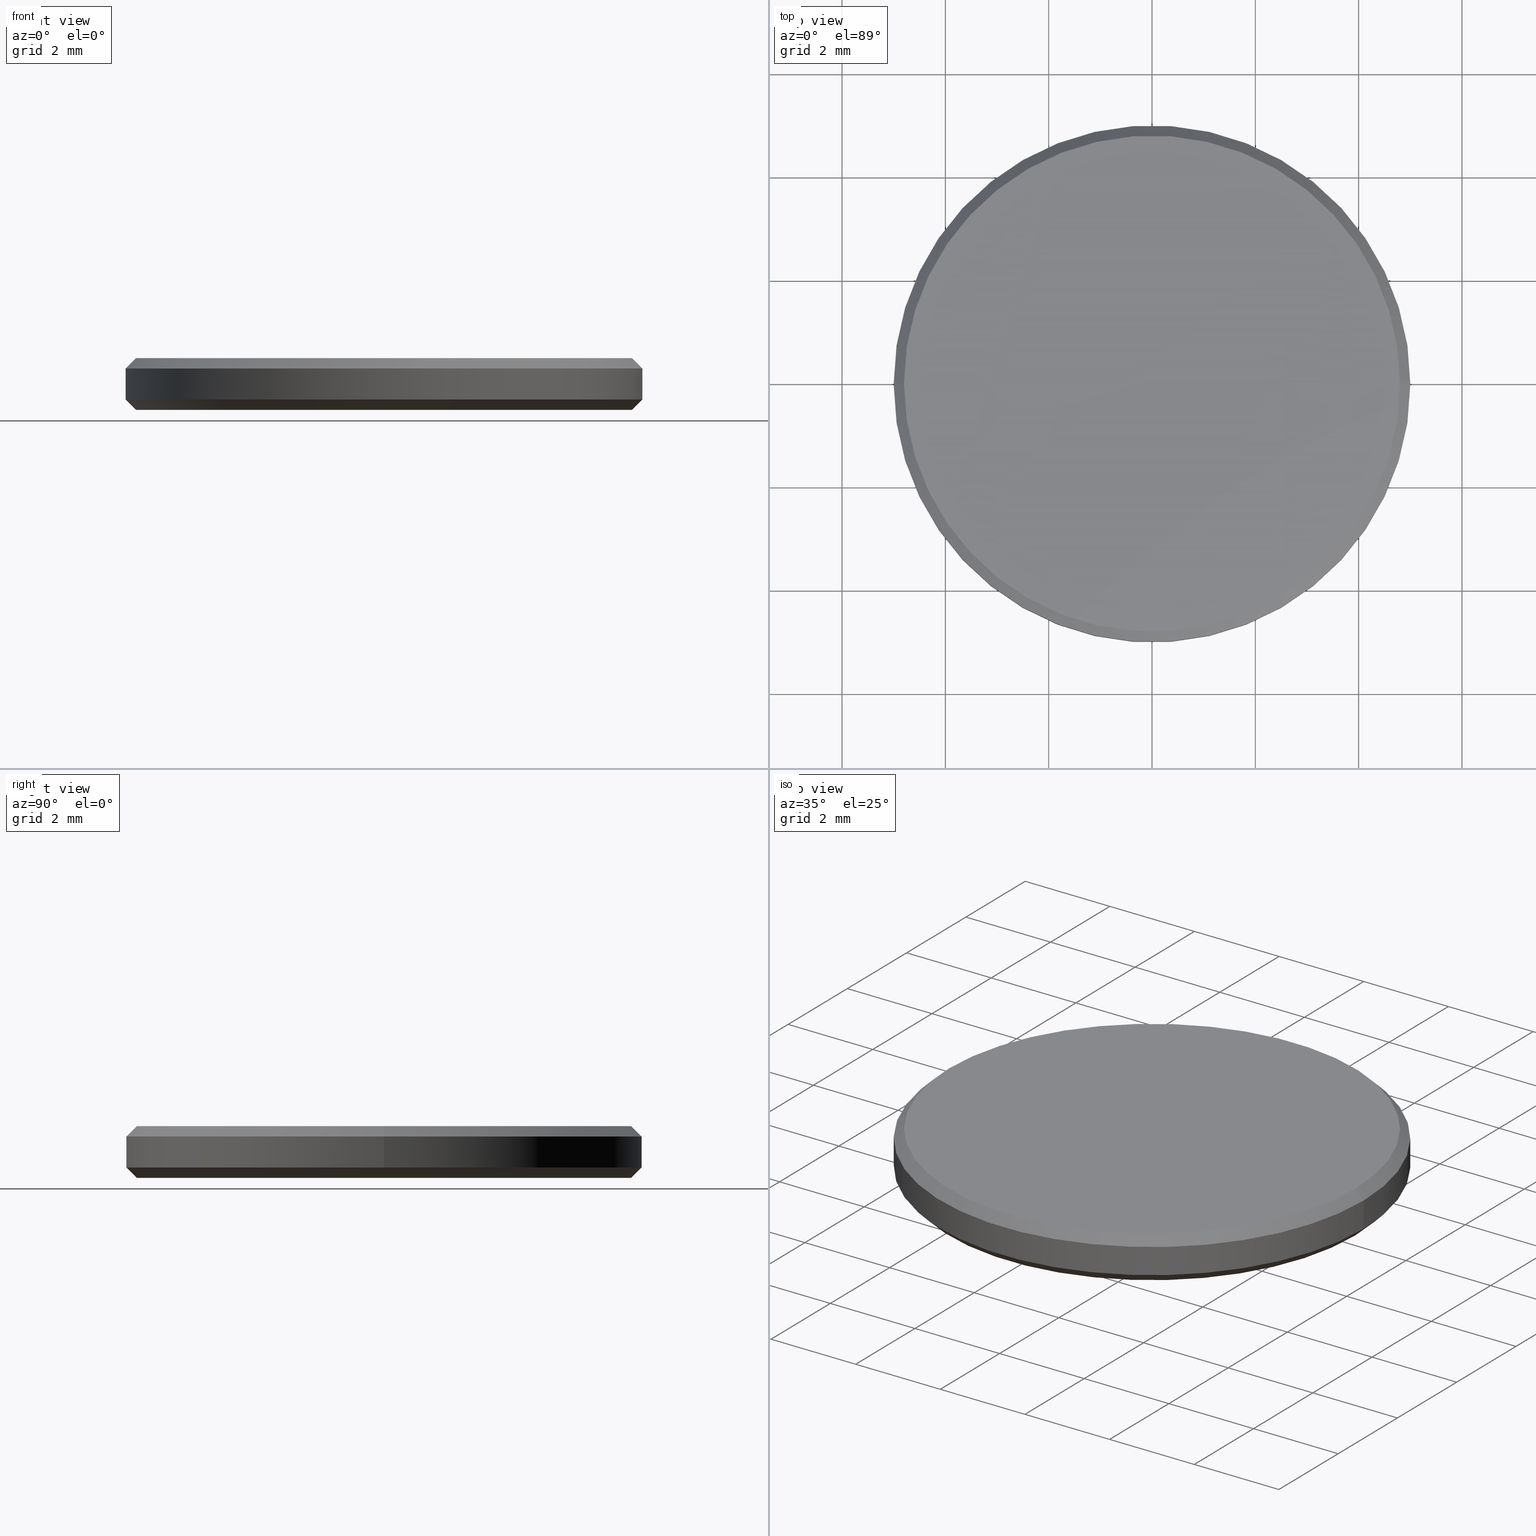
[diagram: canonical four-view strip — front | top / right | iso, engineering-drawing reading convention]
A machine part, canonical four-view strip (front | top / right | iso — engineering-drawing reading convention). The complete STEP part file that produces these views, byte-faithful:
ISO-10303-21;
HEADER;
FILE_DESCRIPTION (( 'STEP AP214' ),
    '1' );
FILE_NAME ('GNIF-2000-4000-D10.STEP',
    '2024-07-19T14:47:55',
    ( '' ),
    ( '' ),
    'SwSTEP 2.0',
    'SolidWorks 2022',
    '' );
FILE_SCHEMA (( 'AUTOMOTIVE_DESIGN' ));
ENDSEC;

DATA;
#1 = ADVANCED_FACE ( 'NONE', ( #106 ), #44, .T. ) ;
#2 = CONICAL_SURFACE ( 'NONE', #58, 4.800000000000002487, 0.7853981633974461696 ) ;
#3 = CARTESIAN_POINT ( 'NONE',  ( 0.000000000000000000, 0.000000000000000000, 1.000000000000000000 ) ) ;
#4 =( NAMED_UNIT ( * ) SI_UNIT ( $, .STERADIAN. ) SOLID_ANGLE_UNIT ( ) );
#5 =( LENGTH_UNIT ( ) NAMED_UNIT ( * ) SI_UNIT ( .MILLI., .METRE. ) );
#6 = EDGE_CURVE ( 'NONE', #205, #144, #240, .T. ) ;
#7 = CLOSED_SHELL ( 'NONE', ( #171, #56, #100, #180, #109, #10, #39, #1 ) ) ;
#8 = LINE ( 'NONE', #77, #120 ) ;
#9 = CARTESIAN_POINT ( 'NONE',  ( 5.000000000000000000, 6.123233995736766282E-16, 0.1999999999999996503 ) ) ;
#10 = ADVANCED_FACE ( 'NONE', ( #126 ), #202, .F. ) ;
#11 = CARTESIAN_POINT ( 'NONE',  ( 0.000000000000000000, 0.000000000000000000, 1.000000000000000000 ) ) ;
#12 = CIRCLE ( 'NONE', #97, 5.000000000000000000 ) ;
#13 = UNCERTAINTY_MEASURE_WITH_UNIT (LENGTH_MEASURE( 1.000000000000000082E-05 ), #5, 'distance_accuracy_value', 'NONE');
#14 = DIRECTION ( 'NONE',  ( -1.000000000000000000, 0.000000000000000000, 0.000000000000000000 ) ) ;
#15 =( NAMED_UNIT ( * ) SI_UNIT ( $, .STERADIAN. ) SOLID_ANGLE_UNIT ( ) );
#16 = FACE_OUTER_BOUND ( 'NONE', #87, .T. ) ;
#17 = EDGE_LOOP ( 'NONE', ( #85, #130 ) ) ;
#18 = MANIFOLD_SOLID_BREP ( '����1', #7 ) ;
#19 = EDGE_CURVE ( 'NONE', #144, #66, #209, .T. ) ;
#20 = ORIENTED_EDGE ( 'NONE', *, *, #19, .T. ) ;
#21 = AXIS2_PLACEMENT_3D ( 'NONE', #33, #107, #192 ) ;
#22 = AXIS2_PLACEMENT_3D ( 'NONE', #57, #149, #226 ) ;
#23 =( NAMED_UNIT ( * ) SI_UNIT ( $, .STERADIAN. ) SOLID_ANGLE_UNIT ( ) );
#24 = EDGE_CURVE ( 'NONE', #169, #203, #116, .T. ) ;
#25 = CARTESIAN_POINT ( 'NONE',  ( 0.000000000000000000, 0.000000000000000000, 1.000000000000000000 ) ) ;
#26 = CIRCLE ( 'NONE', #201, 4.799999999999999822 ) ;
#27 = DIRECTION ( 'NONE',  ( 1.000000000000000000, 0.000000000000000000, -0.000000000000000000 ) ) ;
#28 = STYLED_ITEM ( 'NONE', ( #155 ), #18 ) ;
#29 = CARTESIAN_POINT ( 'NONE',  ( 0.000000000000000000, 0.000000000000000000, 1.000000000000000000 ) ) ;
#30 = ORIENTED_EDGE ( 'NONE', *, *, #117, .F. ) ;
#31 = CARTESIAN_POINT ( 'NONE',  ( -5.000000000000000000, 0.000000000000000000, 0.1999999999999996503 ) ) ;
#32 = VERTEX_POINT ( 'NONE', #41 ) ;
#33 = CARTESIAN_POINT ( 'NONE',  ( 0.000000000000000000, 0.000000000000000000, 0.000000000000000000 ) ) ;
#34 =( NAMED_UNIT ( * ) PLANE_ANGLE_UNIT ( ) SI_UNIT ( $, .RADIAN. ) );
#35 = ORIENTED_EDGE ( 'NONE', *, *, #50, .T. ) ;
#36 = PRODUCT_DEFINITION_SHAPE ( 'NONE', 'NONE',  #188 ) ;
#37 = PRESENTATION_LAYER_ASSIGNMENT (  '', '', ( #204 ) ) ;
#38 = APPLICATION_PROTOCOL_DEFINITION ( 'draft international standard', 'automotive_design', 1998, #220 ) ;
#39 = ADVANCED_FACE ( 'NONE', ( #179 ), #2, .T. ) ;
#40 = CARTESIAN_POINT ( 'NONE',  ( 5.000000000000000000, 6.123233995736766282E-16, 1.000000000000000000 ) ) ;
#41 = CARTESIAN_POINT ( 'NONE',  ( -4.799999999999999822, 6.000769315822029754E-16, 0.000000000000000000 ) ) ;
#42 = PRODUCT_DEFINITION_CONTEXT ( 'detailed design', #112, 'design' ) ;
#43 = DIRECTION ( 'NONE',  ( -1.000000000000000000, 0.000000000000000000, 0.000000000000000000 ) ) ;
#44 = CONICAL_SURFACE ( 'NONE', #110, 5.000000000000000000, 0.7853981633974503884 ) ;
#45 = DIRECTION ( 'NONE',  ( 0.000000000000000000, 0.000000000000000000, -1.000000000000000000 ) ) ;
#46 = CIRCLE ( 'NONE', #190, 5.000000000000000000 ) ;
#47 = DIRECTION ( 'NONE',  ( 0.000000000000000000, 0.000000000000000000, -1.000000000000000000 ) ) ;
#48 = EDGE_LOOP ( 'NONE', ( #103, #127, #122, #30 ) ) ;
#49 = DIRECTION ( 'NONE',  ( -0.7071067811865490160, 8.659560562354950115E-17, 0.7071067811865459074 ) ) ;
#50 = EDGE_CURVE ( 'NONE', #66, #132, #46, .T. ) ;
#51 = ORIENTED_EDGE ( 'NONE', *, *, #19, .F. ) ;
#52 = AXIS2_PLACEMENT_3D ( 'NONE', #159, #194, #27 ) ;
#53 = ORIENTED_EDGE ( 'NONE', *, *, #24, .F. ) ;
#54 = VECTOR ( 'NONE', #160, 1000.000000000000114 ) ;
#55 = SURFACE_STYLE_FILL_AREA ( #94 ) ;
#56 = ADVANCED_FACE ( 'NONE', ( #175 ), #76, .T. ) ;
#57 = CARTESIAN_POINT ( 'NONE',  ( 0.000000000000000000, 0.000000000000000000, 0.1999999999999996503 ) ) ;
#58 = AXIS2_PLACEMENT_3D ( 'NONE', #25, #118, #43 ) ;
#59 = ADVANCED_BREP_SHAPE_REPRESENTATION ( 'GNIF-2000-4000-D10', ( #18, #142 ), #121 ) ;
#60 = PRESENTATION_LAYER_ASSIGNMENT (  '', '', ( #28 ) ) ;
#61 = DIRECTION ( 'NONE',  ( 0.7071067811865490160, 0.000000000000000000, 0.7071067811865459074 ) ) ;
#62 = DIRECTION ( 'NONE',  ( -0.000000000000000000, -0.000000000000000000, -1.000000000000000000 ) ) ;
#63 = ORIENTED_EDGE ( 'NONE', *, *, #166, .F. ) ;
#64 = CARTESIAN_POINT ( 'NONE',  ( 0.000000000000000000, 0.000000000000000000, 0.8000000000000012657 ) ) ;
#65 = CIRCLE ( 'NONE', #22, 5.000000000000000000 ) ;
#66 = VERTEX_POINT ( 'NONE', #9 ) ;
#67 = CIRCLE ( 'NONE', #218, 4.799999999999999822 ) ;
#68 = CARTESIAN_POINT ( 'NONE',  ( -4.800000000000002487, 0.000000000000000000, 1.000000000000000000 ) ) ;
#69 = ORIENTED_EDGE ( 'NONE', *, *, #128, .T. ) ;
#70 = ORIENTED_EDGE ( 'NONE', *, *, #198, .F. ) ;
#71 = AXIS2_PLACEMENT_3D ( 'NONE', #11, #157, #230 ) ;
#72 =( NAMED_UNIT ( * ) PLANE_ANGLE_UNIT ( ) SI_UNIT ( $, .RADIAN. ) );
#73 = CARTESIAN_POINT ( 'NONE',  ( 4.800000000000002487, 6.000769315822031726E-16, 1.000000000000000000 ) ) ;
#74 = DIRECTION ( 'NONE',  ( -0.000000000000000000, -0.000000000000000000, -1.000000000000000000 ) ) ;
#75 = DIRECTION ( 'NONE',  ( 1.000000000000000000, 0.000000000000000000, 0.000000000000000000 ) ) ;
#76 = CONICAL_SURFACE ( 'NONE', #213, 4.800000000000002487, 0.7853981633974461696 ) ;
#77 = CARTESIAN_POINT ( 'NONE',  ( -5.000000000000000000, 6.123233995736765296E-16, 0.1999999999999996503 ) ) ;
#78 = CARTESIAN_POINT ( 'NONE',  ( 0.000000000000000000, 0.000000000000000000, 0.1999999999999996503 ) ) ;
#79 = AXIS2_PLACEMENT_3D ( 'NONE', #152, #170, #224 ) ;
#80 = SURFACE_STYLE_USAGE ( .BOTH. , #195 ) ;
#81 = PRODUCT_RELATED_PRODUCT_CATEGORY ( 'part', '', ( #232 ) ) ;
#82 = FACE_OUTER_BOUND ( 'NONE', #17, .T. ) ;
#83 = PRODUCT_DEFINITION_FORMATION_WITH_SPECIFIED_SOURCE ( '�κ�', '', #232, .NOT_KNOWN. ) ;
#84 = FACE_OUTER_BOUND ( 'NONE', #222, .T. ) ;
#85 = ORIENTED_EDGE ( 'NONE', *, *, #91, .T. ) ;
#86 = DIRECTION ( 'NONE',  ( -0.000000000000000000, -0.000000000000000000, 1.000000000000000000 ) ) ;
#87 = EDGE_LOOP ( 'NONE', ( #206, #196, #90, #146 ) ) ;
#88 = EDGE_CURVE ( 'NONE', #221, #32, #67, .T. ) ;
#89 = APPLICATION_PROTOCOL_DEFINITION ( 'draft international standard', 'automotive_design', 1998, #112 ) ;
#90 = ORIENTED_EDGE ( 'NONE', *, *, #50, .F. ) ;
#91 = EDGE_CURVE ( 'NONE', #169, #205, #111, .T. ) ;
#92 = DIRECTION ( 'NONE',  ( 0.000000000000000000, 0.000000000000000000, 1.000000000000000000 ) ) ;
#93 = DIRECTION ( 'NONE',  ( 0.000000000000000000, 0.000000000000000000, 1.000000000000000000 ) ) ;
#94 = FILL_AREA_STYLE ('',( #131 ) ) ;
#95 = CARTESIAN_POINT ( 'NONE',  ( -5.000000000000000000, 0.000000000000000000, 0.8000000000000012657 ) ) ;
#96 = MECHANICAL_DESIGN_GEOMETRIC_PRESENTATION_REPRESENTATION (  '', ( #28 ), #167 ) ;
#97 = AXIS2_PLACEMENT_3D ( 'NONE', #211, #45, #197 ) ;
#98 = DIRECTION ( 'NONE',  ( -0.000000000000000000, -0.000000000000000000, 1.000000000000000000 ) ) ;
#99 = SURFACE_STYLE_FILL_AREA ( #228 ) ;
#100 = ADVANCED_FACE ( 'NONE', ( #214 ), #138, .T. ) ;
#101 = COLOUR_RGB ( '',1.000000000000000000, 1.000000000000000000, 1.000000000000000000 ) ;
#102 =( LENGTH_UNIT ( ) NAMED_UNIT ( * ) SI_UNIT ( .MILLI., .METRE. ) );
#103 = ORIENTED_EDGE ( 'NONE', *, *, #6, .F. ) ;
#104 = CARTESIAN_POINT ( 'NONE',  ( 5.000000000000000000, 6.123233995736766282E-16, 0.8000000000000012657 ) ) ;
#105 = EDGE_LOOP ( 'NONE', ( #186, #164, #212, #147 ) ) ;
#106 = FACE_OUTER_BOUND ( 'NONE', #105, .T. ) ;
#107 = DIRECTION ( 'NONE',  ( 0.000000000000000000, 0.000000000000000000, 1.000000000000000000 ) ) ;
#108 = ORIENTED_EDGE ( 'NONE', *, *, #128, .F. ) ;
#109 = ADVANCED_FACE ( 'NONE', ( #82 ), #119, .T. ) ;
#110 = AXIS2_PLACEMENT_3D ( 'NONE', #184, #86, #165 ) ;
#111 = CIRCLE ( 'NONE', #71, 4.800000000000002487 ) ;
#112 = APPLICATION_CONTEXT ( 'automotive_design' ) ;
#113 = MECHANICAL_DESIGN_GEOMETRIC_PRESENTATION_REPRESENTATION (  '', ( #204 ), #162 ) ;
#114 = CONICAL_SURFACE ( 'NONE', #225, 5.000000000000000000, 0.7853981633974503884 ) ;
#115 = DIRECTION ( 'NONE',  ( 1.000000000000000000, 0.000000000000000000, 0.000000000000000000 ) ) ;
#116 = LINE ( 'NONE', #234, #54 ) ;
#117 = EDGE_CURVE ( 'NONE', #144, #203, #151, .T. ) ;
#118 = DIRECTION ( 'NONE',  ( 0.000000000000000000, 0.000000000000000000, -1.000000000000000000 ) ) ;
#119 = PLANE ( 'NONE',  #52 ) ;
#120 = VECTOR ( 'NONE', #49, 1000.000000000000000 ) ;
#121 =( GEOMETRIC_REPRESENTATION_CONTEXT ( 3 ) GLOBAL_UNCERTAINTY_ASSIGNED_CONTEXT ( ( #208 ) ) GLOBAL_UNIT_ASSIGNED_CONTEXT ( ( #136, #72, #4 ) ) REPRESENTATION_CONTEXT ( 'NONE', 'WORKASPACE' ) );
#122 = ORIENTED_EDGE ( 'NONE', *, *, #24, .T. ) ;
#123 = DIRECTION ( 'NONE',  ( 1.000000000000000000, 0.000000000000000000, 0.000000000000000000 ) ) ;
#124 = ORIENTED_EDGE ( 'NONE', *, *, #229, .T. ) ;
#125 = LINE ( 'NONE', #215, #134 ) ;
#126 = FACE_OUTER_BOUND ( 'NONE', #231, .T. ) ;
#127 = ORIENTED_EDGE ( 'NONE', *, *, #91, .F. ) ;
#128 = EDGE_CURVE ( 'NONE', #203, #144, #12, .T. ) ;
#129 = AXIS2_PLACEMENT_3D ( 'NONE', #3, #93, #75 ) ;
#130 = ORIENTED_EDGE ( 'NONE', *, *, #198, .T. ) ;
#131 = FILL_AREA_STYLE_COLOUR ( '', #227 ) ;
#132 = VERTEX_POINT ( 'NONE', #31 ) ;
#133 = CARTESIAN_POINT ( 'NONE',  ( 0.000000000000000000, 0.000000000000000000, 0.000000000000000000 ) ) ;
#134 = VECTOR ( 'NONE', #163, 1000.000000000000000 ) ;
#135 = EDGE_CURVE ( 'NONE', #32, #132, #8, .T. ) ;
#136 =( LENGTH_UNIT ( ) NAMED_UNIT ( * ) SI_UNIT ( .MILLI., .METRE. ) );
#137 = CARTESIAN_POINT ( 'NONE',  ( 0.000000000000000000, 0.000000000000000000, 0.000000000000000000 ) ) ;
#138 = CYLINDRICAL_SURFACE ( 'NONE', #174, 5.000000000000000000 ) ;
#139 = CARTESIAN_POINT ( 'NONE',  ( 4.800000000000002487, 5.878304635907297169E-16, 1.000000000000000000 ) ) ;
#140 = CARTESIAN_POINT ( 'NONE',  ( 0.000000000000000000, 0.000000000000000000, 1.000000000000000000 ) ) ;
#141 = AXIS2_PLACEMENT_3D ( 'NONE', #64, #47, #123 ) ;
#142 = AXIS2_PLACEMENT_3D ( 'NONE', #189, #92, #115 ) ;
#143 = DIRECTION ( 'NONE',  ( 0.000000000000000000, 0.000000000000000000, -1.000000000000000000 ) ) ;
#144 = VERTEX_POINT ( 'NONE', #104 ) ;
#145 = CYLINDRICAL_SURFACE ( 'NONE', #79, 5.000000000000000000 ) ;
#146 = ORIENTED_EDGE ( 'NONE', *, *, #183, .F. ) ;
#147 = ORIENTED_EDGE ( 'NONE', *, *, #229, .F. ) ;
#148 = CIRCLE ( 'NONE', #129, 4.800000000000002487 ) ;
#149 = DIRECTION ( 'NONE',  ( -0.000000000000000000, -0.000000000000000000, 1.000000000000000000 ) ) ;
#150 = LINE ( 'NONE', #207, #237 ) ;
#151 = CIRCLE ( 'NONE', #141, 5.000000000000000000 ) ;
#152 = CARTESIAN_POINT ( 'NONE',  ( 0.000000000000000000, 0.000000000000000000, 1.000000000000000000 ) ) ;
#153 = VECTOR ( 'NONE', #217, 1000.000000000000114 ) ;
#154 = CARTESIAN_POINT ( 'NONE',  ( 4.799999999999999822, 0.000000000000000000, 0.000000000000000000 ) ) ;
#155 = PRESENTATION_STYLE_ASSIGNMENT (( #80 ) ) ;
#156 = DIRECTION ( 'NONE',  ( -1.000000000000000000, 0.000000000000000000, 0.000000000000000000 ) ) ;
#157 = DIRECTION ( 'NONE',  ( 0.000000000000000000, 0.000000000000000000, 1.000000000000000000 ) ) ;
#158 = ORIENTED_EDGE ( 'NONE', *, *, #6, .T. ) ;
#159 = CARTESIAN_POINT ( 'NONE',  ( 0.000000000000000000, 0.000000000000000000, 1.000000000000000000 ) ) ;
#160 = DIRECTION ( 'NONE',  ( -0.7071067811865460184, 0.000000000000000000, -0.7071067811865489050 ) ) ;
#161 = ORIENTED_EDGE ( 'NONE', *, *, #219, .T. ) ;
#162 =( GEOMETRIC_REPRESENTATION_CONTEXT ( 3 ) GLOBAL_UNCERTAINTY_ASSIGNED_CONTEXT ( ( #13 ) ) GLOBAL_UNIT_ASSIGNED_CONTEXT ( ( #5, #34, #23 ) ) REPRESENTATION_CONTEXT ( 'NONE', 'WORKASPACE' ) );
#163 = DIRECTION ( 'NONE',  ( -0.000000000000000000, -0.000000000000000000, -1.000000000000000000 ) ) ;
#164 = ORIENTED_EDGE ( 'NONE', *, *, #88, .F. ) ;
#165 = DIRECTION ( 'NONE',  ( 1.000000000000000000, 0.000000000000000000, 0.000000000000000000 ) ) ;
#166 = EDGE_CURVE ( 'NONE', #203, #132, #125, .T. ) ;
#167 =( GEOMETRIC_REPRESENTATION_CONTEXT ( 3 ) GLOBAL_UNCERTAINTY_ASSIGNED_CONTEXT ( ( #177 ) ) GLOBAL_UNIT_ASSIGNED_CONTEXT ( ( #102, #233, #15 ) ) REPRESENTATION_CONTEXT ( 'NONE', 'WORKASPACE' ) );
#168 = SHAPE_DEFINITION_REPRESENTATION ( #36, #59 ) ;
#169 = VERTEX_POINT ( 'NONE', #68 ) ;
#170 = DIRECTION ( 'NONE',  ( -0.000000000000000000, -0.000000000000000000, -1.000000000000000000 ) ) ;
#171 = ADVANCED_FACE ( 'NONE', ( #16 ), #114, .T. ) ;
#172 = SURFACE_SIDE_STYLE ('',( #55 ) ) ;
#173 = DIRECTION ( 'NONE',  ( 1.000000000000000000, 0.000000000000000000, 0.000000000000000000 ) ) ;
#174 = AXIS2_PLACEMENT_3D ( 'NONE', #29, #210, #14 ) ;
#175 = FACE_OUTER_BOUND ( 'NONE', #200, .T. ) ;
#176 = DIRECTION ( 'NONE',  ( 1.000000000000000000, 0.000000000000000000, 0.000000000000000000 ) ) ;
#177 = UNCERTAINTY_MEASURE_WITH_UNIT (LENGTH_MEASURE( 1.000000000000000082E-05 ), #102, 'distance_accuracy_value', 'NONE');
#178 = DIRECTION ( 'NONE',  ( -0.000000000000000000, -0.000000000000000000, -1.000000000000000000 ) ) ;
#179 = FACE_OUTER_BOUND ( 'NONE', #48, .T. ) ;
#180 = ADVANCED_FACE ( 'NONE', ( #84 ), #145, .T. ) ;
#181 = FILL_AREA_STYLE_COLOUR ( '', #101 ) ;
#182 = DIRECTION ( 'NONE',  ( 1.000000000000000000, 0.000000000000000000, 0.000000000000000000 ) ) ;
#183 = EDGE_CURVE ( 'NONE', #221, #66, #150, .T. ) ;
#184 = CARTESIAN_POINT ( 'NONE',  ( 0.000000000000000000, 0.000000000000000000, 0.1999999999999996503 ) ) ;
#185 = ORIENTED_EDGE ( 'NONE', *, *, #88, .T. ) ;
#186 = ORIENTED_EDGE ( 'NONE', *, *, #135, .F. ) ;
#187 = SURFACE_STYLE_USAGE ( .BOTH. , #172 ) ;
#188 = PRODUCT_DEFINITION ( 'δ֪', '', #83, #42 ) ;
#189 = CARTESIAN_POINT ( 'NONE',  ( 0.000000000000000000, 0.000000000000000000, 0.000000000000000000 ) ) ;
#190 = AXIS2_PLACEMENT_3D ( 'NONE', #78, #98, #176 ) ;
#191 = PRODUCT_CONTEXT ( 'NONE', #220, 'mechanical' ) ;
#192 = DIRECTION ( 'NONE',  ( 1.000000000000000000, 0.000000000000000000, -0.000000000000000000 ) ) ;
#193 = DIRECTION ( 'NONE',  ( 1.000000000000000000, 0.000000000000000000, 0.000000000000000000 ) ) ;
#194 = DIRECTION ( 'NONE',  ( 0.000000000000000000, 0.000000000000000000, 1.000000000000000000 ) ) ;
#195 = SURFACE_SIDE_STYLE ('',( #99 ) ) ;
#196 = ORIENTED_EDGE ( 'NONE', *, *, #135, .T. ) ;
#197 = DIRECTION ( 'NONE',  ( 1.000000000000000000, 0.000000000000000000, 0.000000000000000000 ) ) ;
#198 = EDGE_CURVE ( 'NONE', #205, #169, #148, .T. ) ;
#199 = DIRECTION ( 'NONE',  ( -0.000000000000000000, -0.000000000000000000, 1.000000000000000000 ) ) ;
#200 = EDGE_LOOP ( 'NONE', ( #70, #158, #108, #53 ) ) ;
#201 = AXIS2_PLACEMENT_3D ( 'NONE', #133, #74, #173 ) ;
#202 = PLANE ( 'NONE',  #21 ) ;
#203 = VERTEX_POINT ( 'NONE', #95 ) ;
#204 = STYLED_ITEM ( 'NONE', ( #223 ), #59 ) ;
#205 = VERTEX_POINT ( 'NONE', #73 ) ;
#206 = ORIENTED_EDGE ( 'NONE', *, *, #219, .F. ) ;
#207 = CARTESIAN_POINT ( 'NONE',  ( 5.000000000000000000, 0.000000000000000000, 0.1999999999999996503 ) ) ;
#208 = UNCERTAINTY_MEASURE_WITH_UNIT (LENGTH_MEASURE( 1.000000000000000082E-05 ), #136, 'distance_accuracy_value', 'NONE');
#209 = LINE ( 'NONE', #40, #236 ) ;
#210 = DIRECTION ( 'NONE',  ( -0.000000000000000000, -0.000000000000000000, -1.000000000000000000 ) ) ;
#211 = CARTESIAN_POINT ( 'NONE',  ( 0.000000000000000000, 0.000000000000000000, 0.8000000000000012657 ) ) ;
#212 = ORIENTED_EDGE ( 'NONE', *, *, #183, .T. ) ;
#213 = AXIS2_PLACEMENT_3D ( 'NONE', #140, #143, #156 ) ;
#214 = FACE_OUTER_BOUND ( 'NONE', #239, .T. ) ;
#215 = CARTESIAN_POINT ( 'NONE',  ( -5.000000000000000000, 0.000000000000000000, 1.000000000000000000 ) ) ;
#216 = ORIENTED_EDGE ( 'NONE', *, *, #117, .T. ) ;
#217 = DIRECTION ( 'NONE',  ( 0.7071067811865460184, 8.659560562354913137E-17, -0.7071067811865489050 ) ) ;
#218 = AXIS2_PLACEMENT_3D ( 'NONE', #137, #178, #193 ) ;
#219 = EDGE_CURVE ( 'NONE', #32, #221, #26, .T. ) ;
#220 = APPLICATION_CONTEXT ( 'automotive_design' ) ;
#221 = VERTEX_POINT ( 'NONE', #154 ) ;
#222 = EDGE_LOOP ( 'NONE', ( #51, #216, #235, #124 ) ) ;
#223 = PRESENTATION_STYLE_ASSIGNMENT (( #187 ) ) ;
#224 = DIRECTION ( 'NONE',  ( -1.000000000000000000, 0.000000000000000000, 0.000000000000000000 ) ) ;
#225 = AXIS2_PLACEMENT_3D ( 'NONE', #238, #199, #182 ) ;
#226 = DIRECTION ( 'NONE',  ( 1.000000000000000000, 0.000000000000000000, 0.000000000000000000 ) ) ;
#227 = COLOUR_RGB ( '',1.000000000000000000, 1.000000000000000000, 1.000000000000000000 ) ;
#228 = FILL_AREA_STYLE ('',( #181 ) ) ;
#229 = EDGE_CURVE ( 'NONE', #132, #66, #65, .T. ) ;
#230 = DIRECTION ( 'NONE',  ( 1.000000000000000000, 0.000000000000000000, 0.000000000000000000 ) ) ;
#231 = EDGE_LOOP ( 'NONE', ( #185, #161 ) ) ;
#232 = PRODUCT ( 'GNIF-2000-4000-D10', 'GNIF-2000-4000-D10', '', ( #191 ) ) ;
#233 =( NAMED_UNIT ( * ) PLANE_ANGLE_UNIT ( ) SI_UNIT ( $, .RADIAN. ) );
#234 = CARTESIAN_POINT ( 'NONE',  ( -4.800000000000002487, 0.000000000000000000, 1.000000000000000000 ) ) ;
#235 = ORIENTED_EDGE ( 'NONE', *, *, #166, .T. ) ;
#236 = VECTOR ( 'NONE', #62, 1000.000000000000000 ) ;
#237 = VECTOR ( 'NONE', #61, 1000.000000000000000 ) ;
#238 = CARTESIAN_POINT ( 'NONE',  ( 0.000000000000000000, 0.000000000000000000, 0.1999999999999996503 ) ) ;
#239 = EDGE_LOOP ( 'NONE', ( #69, #20, #35, #63 ) ) ;
#240 = LINE ( 'NONE', #139, #153 ) ;
ENDSEC;
END-ISO-10303-21;
